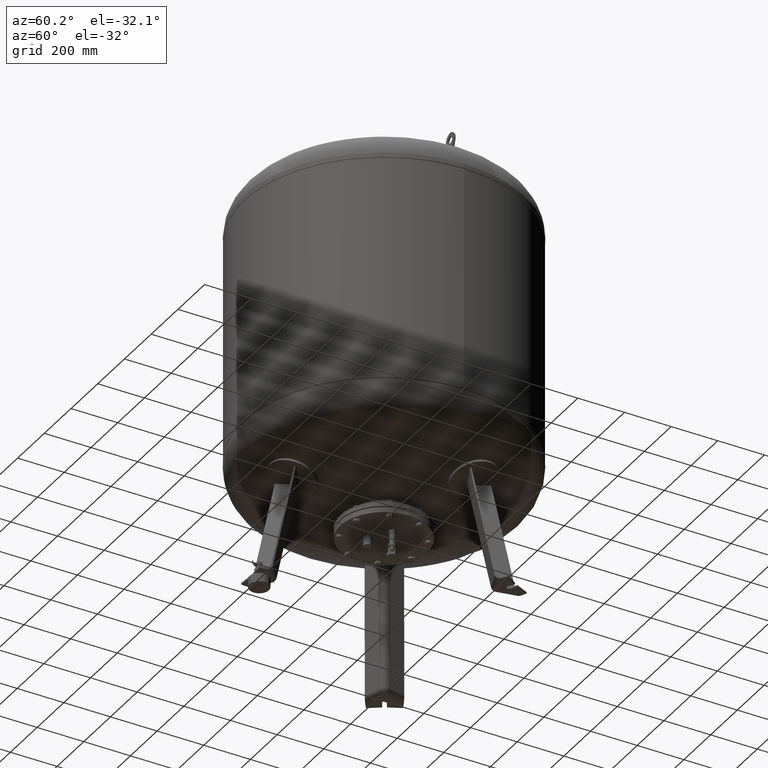
[diagram: clean part render]
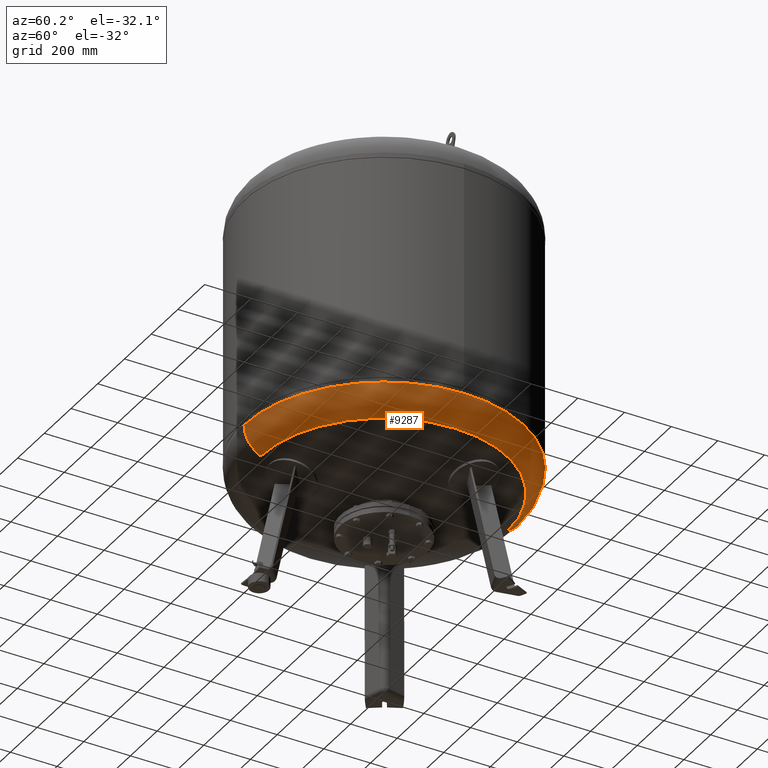
[diagram: same view with one face highlighted and labeled with its STEP entity id]
A machine part, auxiliary view. The second image highlights one B-rep face of the part: STEP entity #9287.
In plain terms, the highlighted toroidal blend (fillet) surface has major radius 473 mm and minor (blend) radius 127 mm.
Its self-contained STEP definition (entity closure, byte-faithful):
#9173=CARTESIAN_POINT('',(599.999999999999890,3.010780E-014,696.087542566272300));
#9174=VERTEX_POINT('',#9173);
#9181=CARTESIAN_POINT('',(-1.445307E-013,600.0,696.087542566272420));
#9182=VERTEX_POINT('',#9181);
#9183=CARTESIAN_POINT('',(-3.551733E-014,-4.336858E-014,696.087542566272300));
#9184=DIRECTION('',(0.0,0.0,1.0));
#9185=DIRECTION('',(-1.0,0.0,0.0));
#9186=AXIS2_PLACEMENT_3D('',#9183,#9184,#9185);
#9187=CIRCLE('',#9186,600.0);
#9188=EDGE_CURVE('',#9174,#9182,#9187,.T.);
#9205=CARTESIAN_POINT('',(-7.105427E-014,-600.0,696.087542566272190));
#9206=VERTEX_POINT('',#9205);
#9207=CARTESIAN_POINT('',(-5.387807E-014,-528.621296296296240,581.915429516194880));
#9208=VERTEX_POINT('',#9207);
#9209=CARTESIAN_POINT('',(-7.105427E-014,-472.999999999999940,696.087542566272190));
#9210=DIRECTION('',(1.0,0.0,0.0));
#9211=DIRECTION('',(0.0,-1.0,0.0));
#9212=AXIS2_PLACEMENT_3D('',#9209,#9210,#9211);
#9213=CIRCLE('',#9212,127.000000000000010);
#9214=EDGE_CURVE('',#9206,#9208,#9213,.T.);
#9224=CARTESIAN_POINT('',(-1.186134E-013,528.621296296296240,581.915429516195100));
#9225=VERTEX_POINT('',#9224);
#9226=CARTESIAN_POINT('',(-1.289782E-013,472.999999999999830,696.087542566272420));
#9227=DIRECTION('',(-1.0,0.0,0.0));
#9228=DIRECTION('',(0.0,1.0,0.0));
#9229=AXIS2_PLACEMENT_3D('',#9226,#9227,#9228);
#9230=CIRCLE('',#9229,127.000000000000010);
#9231=EDGE_CURVE('',#9182,#9225,#9230,.T.);
#9259=CARTESIAN_POINT('',(-1.834112E-014,-2.239550E-014,581.915429516194990));
#9260=DIRECTION('',(0.0,0.0,1.0));
#9261=DIRECTION('',(-1.0,0.0,0.0));
#9262=AXIS2_PLACEMENT_3D('',#9259,#9260,#9261);
#9263=CIRCLE('',#9262,528.621296296296240);
#9264=EDGE_CURVE('',#9208,#9225,#9263,.T.);
#9269=CARTESIAN_POINT('',(-7.105427E-014,-4.336858E-014,696.087542566272300));
#9270=DIRECTION('',(-1.504413E-016,-1.836970E-016,1.0));
#9271=DIRECTION('',(0.0,-1.0,0.0));
#9272=AXIS2_PLACEMENT_3D('',#9269,#9270,#9271);
#9273=TOROIDAL_SURFACE('',#9272,472.999999999999890,127.000000000000010);
#9274=ORIENTED_EDGE('',*,*,#9214,.T.);
#9275=ORIENTED_EDGE('',*,*,#9264,.T.);
#9276=ORIENTED_EDGE('',*,*,#9231,.F.);
#9277=ORIENTED_EDGE('',*,*,#9188,.F.);
#9278=CARTESIAN_POINT('',(-3.551733E-014,-4.336858E-014,696.087542566272300));
#9279=DIRECTION('',(0.0,0.0,1.0));
#9280=DIRECTION('',(-1.0,0.0,0.0));
#9281=AXIS2_PLACEMENT_3D('',#9278,#9279,#9280);
#9282=CIRCLE('',#9281,600.0);
#9283=EDGE_CURVE('',#9206,#9174,#9282,.T.);
#9284=ORIENTED_EDGE('',*,*,#9283,.F.);
#9285=EDGE_LOOP('',(#9274,#9275,#9276,#9277,#9284));
#9286=FACE_OUTER_BOUND('',#9285,.T.);
#9287=ADVANCED_FACE('',(#9286),#9273,.T.);